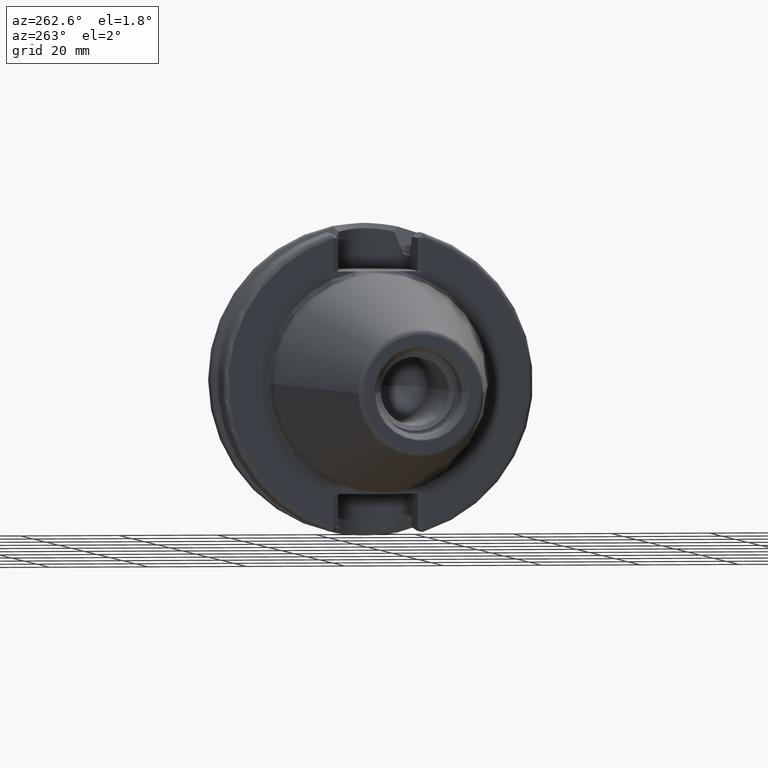
[diagram: clean part render]
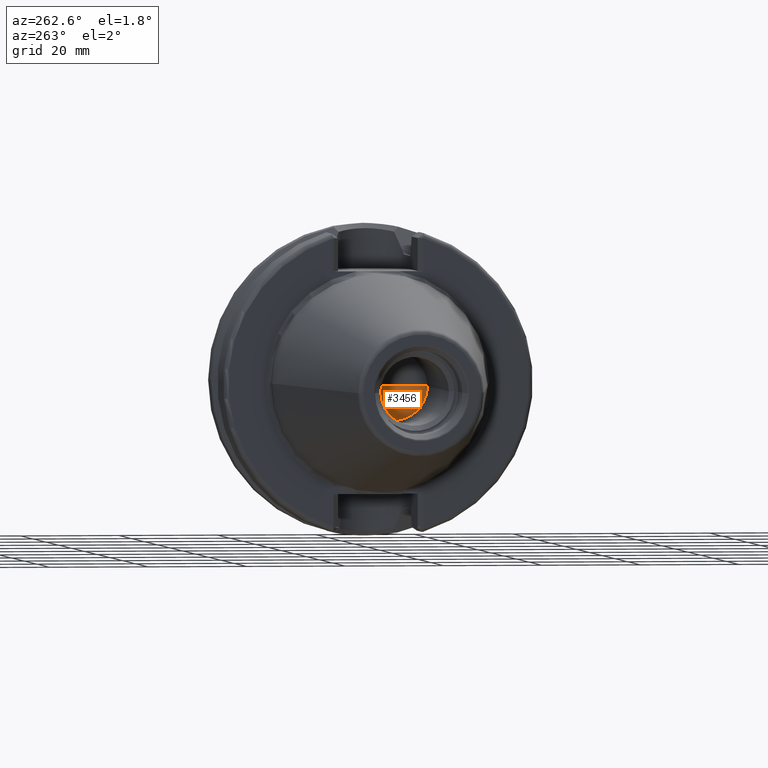
[diagram: same view with one face highlighted and labeled with its STEP entity id]
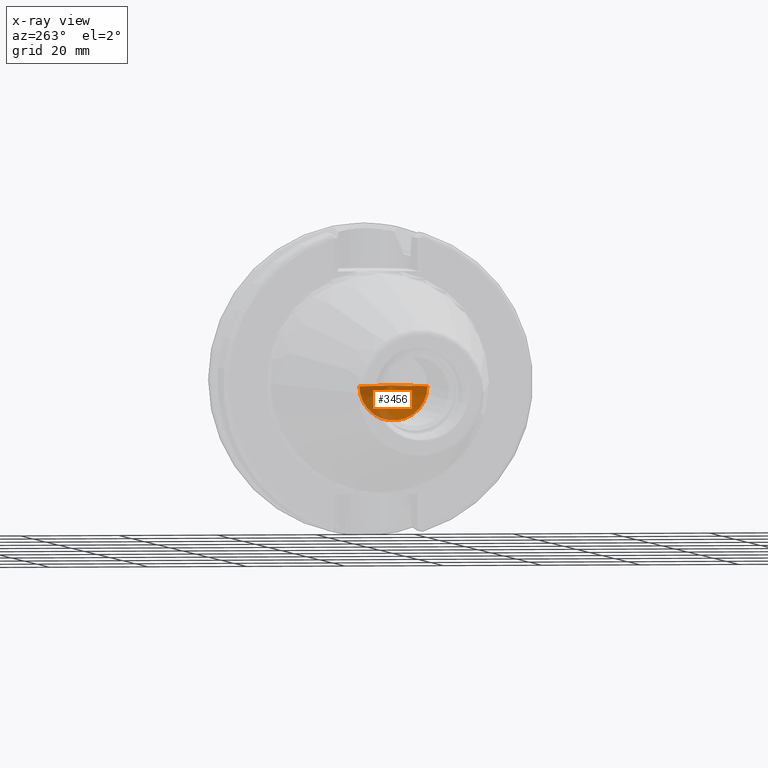
[diagram: x-ray of the same camera — body ghosted, the highlighted face saturated]
A machine part, auxiliary view. The second image highlights one B-rep face of the part: STEP entity #3456.
The next image is the same camera in x-ray: the body ghosted, the highlighted face saturated — about 34% of this face is hidden behind the body in this view.
In plain terms, the highlighted conical surface has half-angle 59 deg.
Its self-contained STEP definition (entity closure, byte-faithful):
#1282=CARTESIAN_POINT('',(-2.14E1,0.E0,0.E0));
#1283=DIRECTION('',(-1.E0,0.E0,0.E0));
#1284=DIRECTION('',(0.E0,1.E0,0.E0));
#1285=AXIS2_PLACEMENT_3D('',#1282,#1283,#1284);
#1296=DIRECTION('',(-5.150380749101E-1,8.571673007021E-1,0.E0));
#1297=VECTOR('',#1296,8.073103108730E0);
#1298=CARTESIAN_POINT('',(-1.724204451633E1,0.E0,0.E0));
#1299=LINE('',#1298,#1297);
#1300=DIRECTION('',(-5.150380749101E-1,-8.571673007021E-1,0.E0));
#1301=VECTOR('',#1300,8.073103108730E0);
#1302=CARTESIAN_POINT('',(-1.724204451633E1,0.E0,0.E0));
#1303=LINE('',#1302,#1301);
#1388=CARTESIAN_POINT('',(-1.724204451633E1,0.E0,0.E0));
#1389=CARTESIAN_POINT('',(-2.14E1,6.92E0,0.E0));
#1390=VERTEX_POINT('',#1388);
#1391=VERTEX_POINT('',#1389);
#1412=CARTESIAN_POINT('',(-2.14E1,-6.92E0,0.E0));
#1413=VERTEX_POINT('',#1412);
#3446=CARTESIAN_POINT('',(-1.932102225816E1,0.E0,0.E0));
#3447=DIRECTION('',(-1.E0,0.E0,0.E0));
#3448=DIRECTION('',(0.E0,1.E0,0.E0));
#3449=AXIS2_PLACEMENT_3D('',#3446,#3447,#3448);
#3450=CONICAL_SURFACE('',#3449,3.46E0,5.9E1);
#3451=ORIENTED_EDGE('',*,*,#3438,.F.);
#3452=ORIENTED_EDGE('',*,*,#3441,.T.);
#3453=ORIENTED_EDGE('',*,*,#3412,.F.);
#3454=EDGE_LOOP('',(#3451,#3452,#3453));
#3455=FACE_OUTER_BOUND('',#3454,.F.);
#3456=ADVANCED_FACE('',(#3455),#3450,.F.);
#1286=CIRCLE('',#1285,6.92E0);
#3412=EDGE_CURVE('',#1391,#1413,#1286,.T.);
#3438=EDGE_CURVE('',#1390,#1391,#1299,.T.);
#3441=EDGE_CURVE('',#1390,#1413,#1303,.T.);